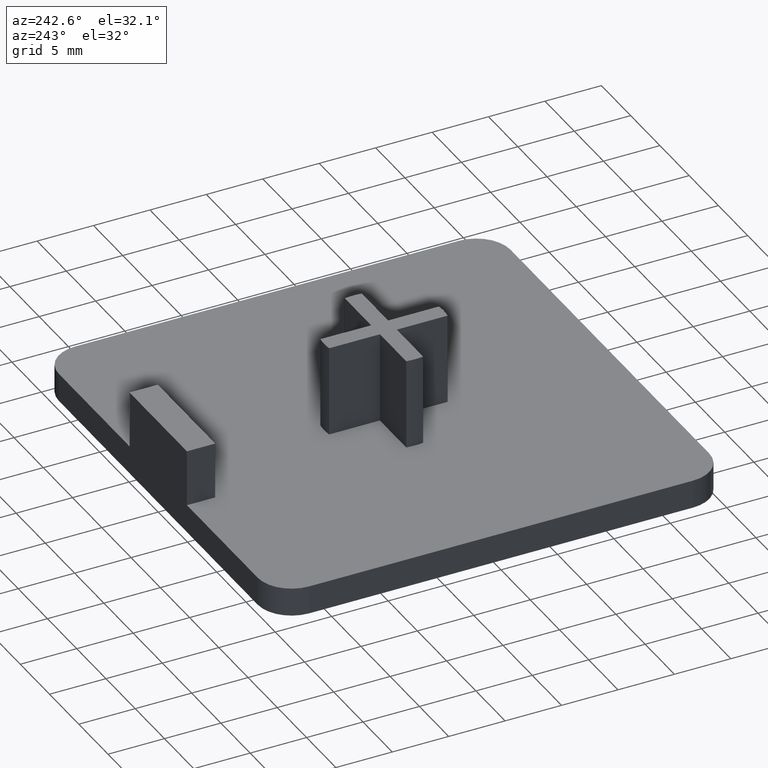
[diagram: clean part render]
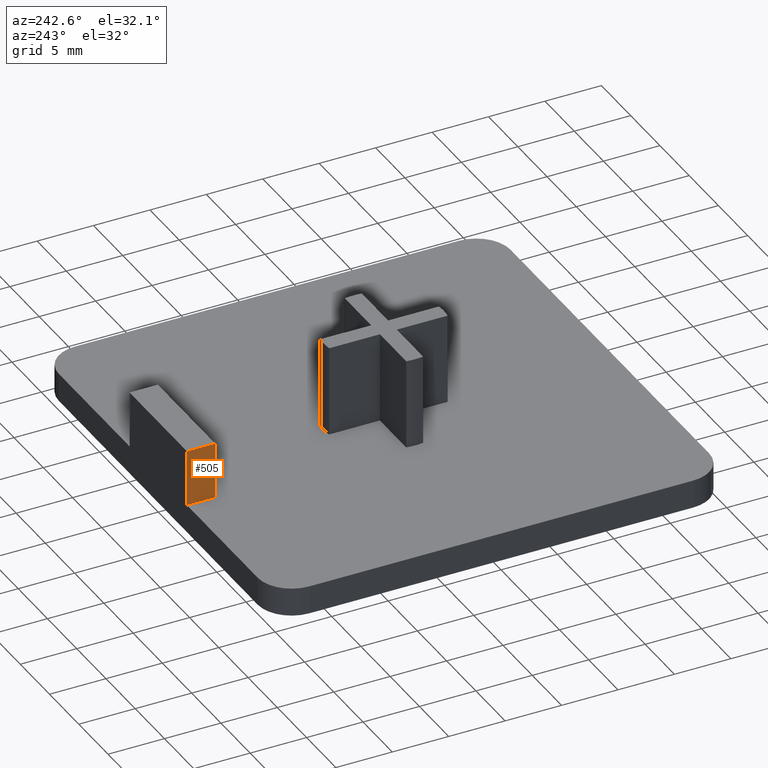
[diagram: same view with one face highlighted and labeled with its STEP entity id]
A machine part, auxiliary view. The second image highlights one B-rep face of the part: STEP entity #505.
In plain terms, the highlighted planar face has unit normal (-1, 0, 0).
Its self-contained STEP definition (entity closure, byte-faithful):
#55=FACE_OUTER_BOUND('',#82,.T.);
#82=EDGE_LOOP('',(#395,#396,#397,#398));
#126=LINE('',#788,#182);
#130=LINE('',#797,#186);
#131=LINE('',#799,#187);
#132=LINE('',#800,#188);
#182=VECTOR('',#639,5.);
#186=VECTOR('',#647,2.50000000000001);
#187=VECTOR('',#648,2.50000000000001);
#188=VECTOR('',#649,5.);
#232=VERTEX_POINT('',#782);
#234=VERTEX_POINT('',#786);
#237=VERTEX_POINT('',#796);
#238=VERTEX_POINT('',#798);
#294=EDGE_CURVE('',#232,#234,#126,.T.);
#298=EDGE_CURVE('',#232,#237,#130,.T.);
#299=EDGE_CURVE('',#238,#234,#131,.T.);
#300=EDGE_CURVE('',#237,#238,#132,.T.);
#395=ORIENTED_EDGE('',*,*,#298,.F.);
#396=ORIENTED_EDGE('',*,*,#294,.T.);
#397=ORIENTED_EDGE('',*,*,#299,.F.);
#398=ORIENTED_EDGE('',*,*,#300,.F.);
#482=PLANE('',#542);
#505=ADVANCED_FACE('',(#55),#482,.T.);
#542=AXIS2_PLACEMENT_3D('',#795,#645,#646);
#639=DIRECTION('',(0.,0.,1.));
#645=DIRECTION('center_axis',(-1.,0.,0.));
#646=DIRECTION('ref_axis',(0.,-1.,0.));
#647=DIRECTION('',(0.,1.,0.));
#648=DIRECTION('',(0.,-1.,0.));
#649=DIRECTION('',(0.,0.,1.));
#782=CARTESIAN_POINT('',(-4.9,17.5,2.5));
#786=CARTESIAN_POINT('',(-4.9,17.5,7.5));
#788=CARTESIAN_POINT('',(-4.9,17.5,0.));
#795=CARTESIAN_POINT('Origin',(-4.9,20.,0.));
#796=CARTESIAN_POINT('',(-4.9,20.,2.5));
#797=CARTESIAN_POINT('',(-4.9,19.375,2.5));
#798=CARTESIAN_POINT('',(-4.9,20.,7.5));
#799=CARTESIAN_POINT('',(-4.9,20.,7.5));
#800=CARTESIAN_POINT('',(-4.9,20.,0.));